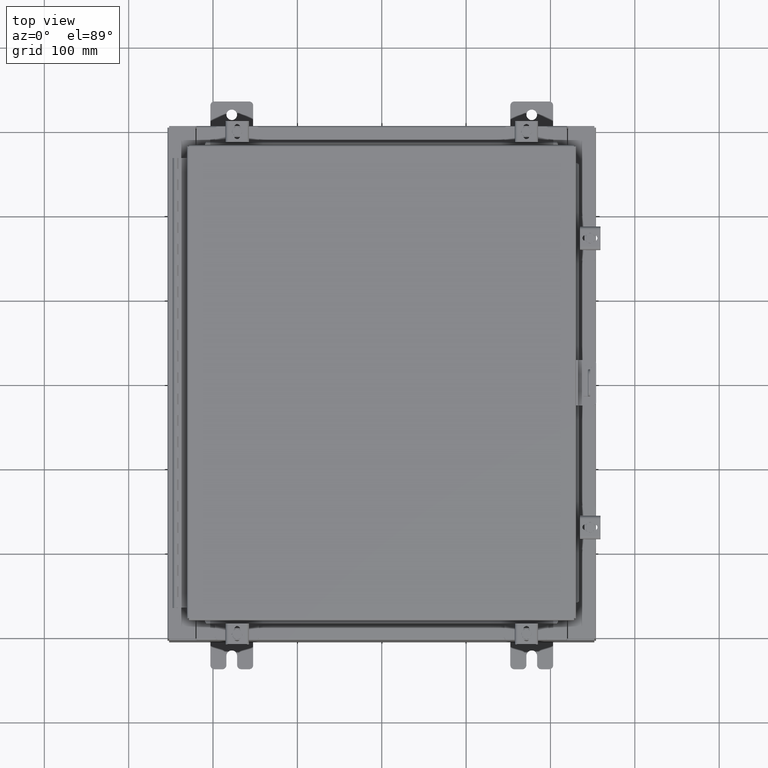
[diagram: clean part render]
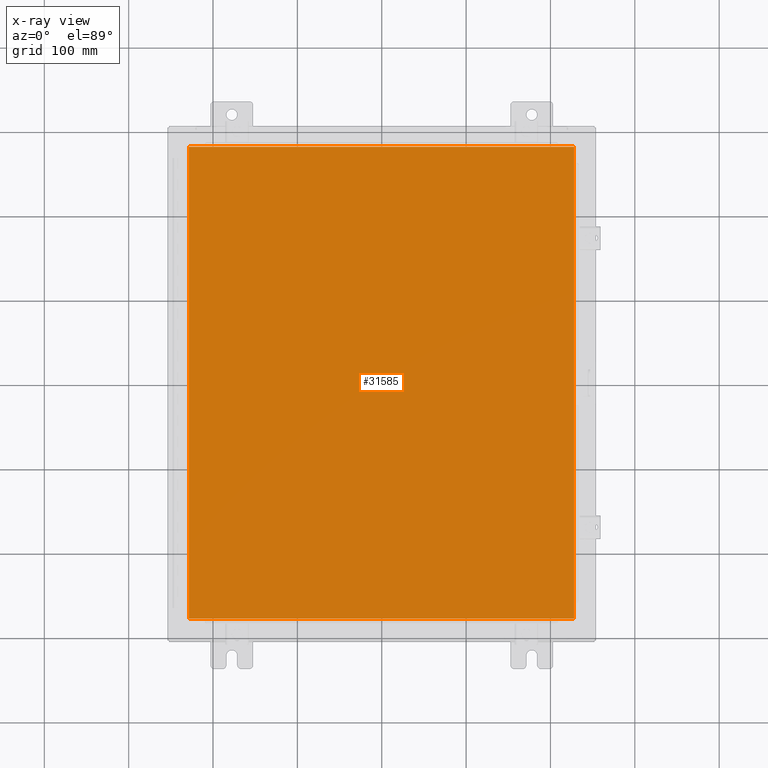
[diagram: x-ray — body ghosted, one internal face saturated and labeled with its STEP entity id]
A machine part, top view, then the same camera in x-ray: the body is ghosted and one INTERNAL B-rep face — a face not visible from any outside direction — is saturated and labeled: STEP entity #31585.
In plain terms, the highlighted planar face has unit normal (0, 0, -1).
Its self-contained STEP definition (entity closure, byte-faithful):
#117 = CARTESIAN_POINT ( 'NONE',  ( 8.990299999999997700, 11.00630000000000000, -0.07470000000000000300 ) ) ;
#2011 = ORIENTED_EDGE ( 'NONE', *, *, #9226, .F. ) ;
#2116 = CARTESIAN_POINT ( 'NONE',  ( 8.990299999999997700, -11.00630000000000000, -0.07470000000000000300 ) ) ;
#3134 = DIRECTION ( 'NONE',  ( 0.0000000000000000000, -1.000000000000000000, 0.0000000000000000000 ) ) ;
#4470 = VECTOR ( 'NONE', #27156, 39.37007874015748100 ) ;
#6166 = FACE_OUTER_BOUND ( 'NONE', #16397, .T. ) ;
#6537 = EDGE_CURVE ( 'NONE', #13911, #17045, #13701, .T. ) ;
#7685 = VECTOR ( 'NONE', #3134, 39.37007874015748100 ) ;
#8818 = DIRECTION ( 'NONE',  ( 0.0000000000000000000, 1.000000000000000000, 0.0000000000000000000 ) ) ;
#9226 = EDGE_CURVE ( 'NONE', #17045, #31877, #19438, .T. ) ;
#9899 = VECTOR ( 'NONE', #8818, 39.37007874015748100 ) ;
#12391 = ORIENTED_EDGE ( 'NONE', *, *, #15289, .F. ) ;
#12888 = CARTESIAN_POINT ( 'NONE',  ( -8.990299999999999500, 11.00630000000000100, -0.07470000000000019700 ) ) ;
#13422 = DIRECTION ( 'NONE',  ( -1.000000000000000000, -0.0000000000000000000, -0.0000000000000000000 ) ) ;
#13701 = LINE ( 'NONE', #15938, #19562 ) ;
#13911 = VERTEX_POINT ( 'NONE', #117 ) ;
#15289 = EDGE_CURVE ( 'NONE', #31877, #17420, #24497, .T. ) ;
#15938 = CARTESIAN_POINT ( 'NONE',  ( 8.990299999999999500, 11.00630000000000000, -0.07470000000000019700 ) ) ;
#16136 = DIRECTION ( 'NONE',  ( -1.000000000000000000, 0.0000000000000000000, -0.0000000000000000000 ) ) ;
#16397 = EDGE_LOOP ( 'NONE', ( #21136, #12391, #2011, #25873 ) ) ;
#17045 = VERTEX_POINT ( 'NONE', #20119 ) ;
#17420 = VERTEX_POINT ( 'NONE', #2116 ) ;
#19438 = LINE ( 'NONE', #12888, #7685 ) ;
#19562 = VECTOR ( 'NONE', #13422, 39.37007874015748100 ) ;
#20119 = CARTESIAN_POINT ( 'NONE',  ( -8.990299999999999500, 11.00630000000000000, -0.07470000000000000300 ) ) ;
#21136 = ORIENTED_EDGE ( 'NONE', *, *, #23022, .F. ) ;
#23022 = EDGE_CURVE ( 'NONE', #17420, #13911, #29133, .T. ) ;
#23593 = PLANE ( 'NONE',  #24190 ) ;
#24190 = AXIS2_PLACEMENT_3D ( 'NONE', #28635, #31141, #16136 ) ;
#24497 = LINE ( 'NONE', #24643, #4470 ) ;
#24643 = CARTESIAN_POINT ( 'NONE',  ( -8.990300000000001300, -11.00630000000000100, -0.07469999999999910000 ) ) ;
#25873 = ORIENTED_EDGE ( 'NONE', *, *, #6537, .F. ) ;
#27156 = DIRECTION ( 'NONE',  ( 1.000000000000000000, -0.0000000000000000000, -0.0000000000000000000 ) ) ;
#28635 = CARTESIAN_POINT ( 'NONE',  ( 0.0000000000000000000, 0.0000000000000000000, -0.07470000000000000300 ) ) ;
#29133 = LINE ( 'NONE', #31287, #9899 ) ;
#31141 = DIRECTION ( 'NONE',  ( 0.0000000000000000000, 0.0000000000000000000, -1.000000000000000000 ) ) ;
#31287 = CARTESIAN_POINT ( 'NONE',  ( 8.990299999999997700, -11.00630000000000000, -0.07470000000000019700 ) ) ;
#31585 = ADVANCED_FACE ( 'NONE', ( #6166 ), #23593, .T. ) ;
#31877 = VERTEX_POINT ( 'NONE', #32306 ) ;
#32306 = CARTESIAN_POINT ( 'NONE',  ( -8.990299999999997700, -11.00630000000000100, -0.07470000000000000300 ) ) ;